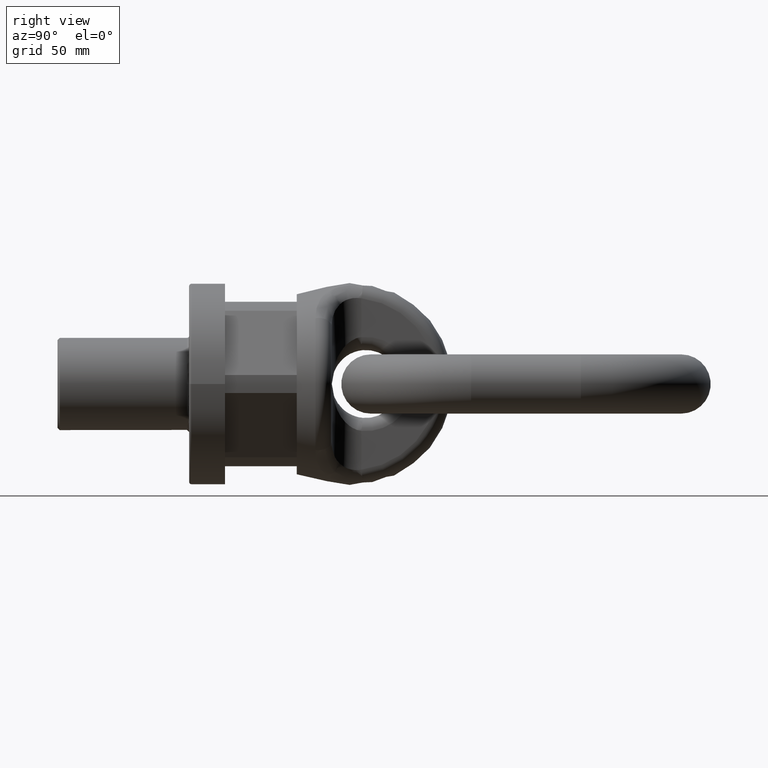
[diagram: clean part render]
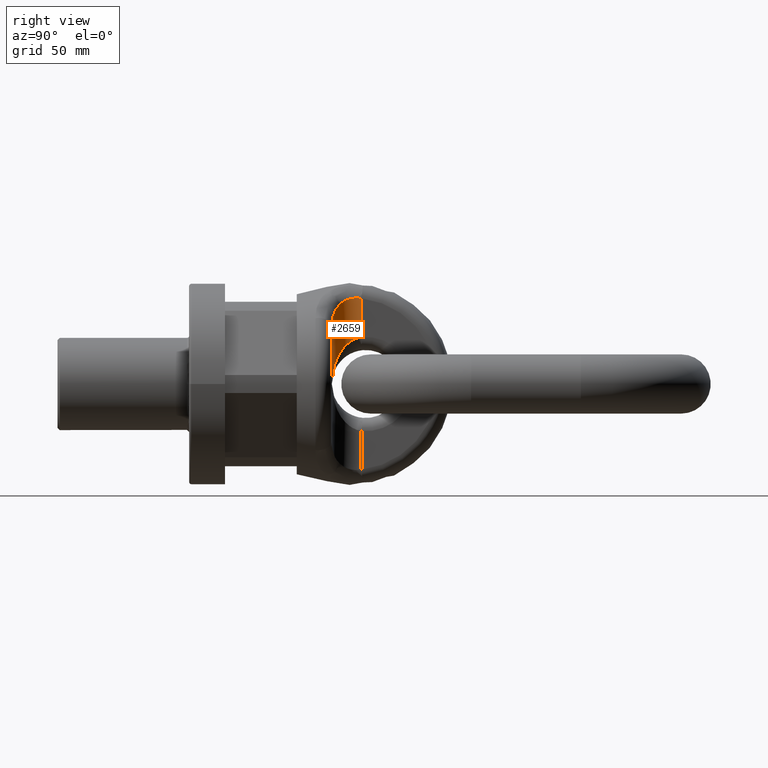
[diagram: same view with one face highlighted and labeled with its STEP entity id]
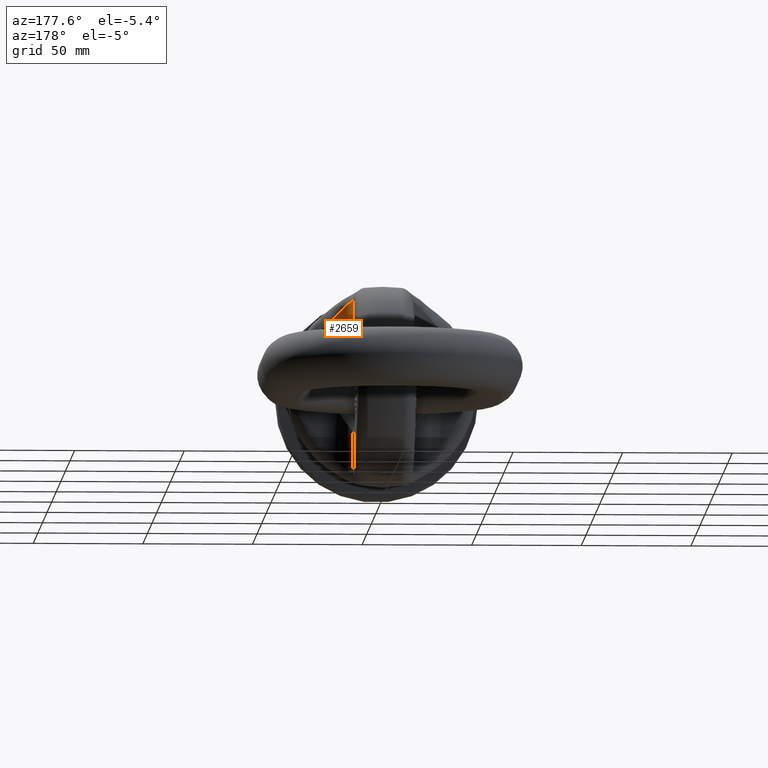
[diagram: same view with one face highlighted and labeled with its STEP entity id]
A machine part, right view. The second image highlights one B-rep face of the part: STEP entity #2659.
A second angle (auxiliary view) of the same face is appended — the face is thin or edge-on in the first view.
In plain terms, the highlighted cylindrical surface (edge-blend (fillet) strip) has radius 13.5 mm, axis along (0, 0, -1).
Its self-contained STEP definition (entity closure, byte-faithful):
#343=B_SPLINE_CURVE_WITH_KNOTS('',3,(#6964,#6965,#6966,#6967,#6968,#6969,
#6970,#6971),.UNSPECIFIED.,.F.,.F.,(4,2,2,4),(0.,0.5,0.75,1.),
 .UNSPECIFIED.);
#344=B_SPLINE_CURVE_WITH_KNOTS('',3,(#6972,#6973,#6974,#6975,#6976,#6977),
 .UNSPECIFIED.,.F.,.F.,(4,2,4),(0.,0.5,1.),.UNSPECIFIED.);
#345=B_SPLINE_CURVE_WITH_KNOTS('',3,(#6979,#6980,#6981,#6982,#6983,#6984),
 .UNSPECIFIED.,.F.,.F.,(4,2,4),(0.,0.5,1.),.UNSPECIFIED.);
#1812=FACE_OUTER_BOUND('',#3094,.T.);
#2020=CYLINDRICAL_SURFACE('',#5642,13.5);
#2063=LINE('',#6780,#2319);
#2091=LINE('',#6961,#2347);
#2319=VECTOR('',#5919,1.);
#2347=VECTOR('',#5953,1.);
#2659=ADVANCED_FACE('',(#1812),#2020,.F.);
#3094=EDGE_LOOP('',(#3503,#3504,#3505,#3506,#3507));
#3503=ORIENTED_EDGE('',*,*,#5050,.F.);
#3504=ORIENTED_EDGE('',*,*,#5051,.T.);
#3505=ORIENTED_EDGE('',*,*,#5000,.F.);
#3506=ORIENTED_EDGE('',*,*,#5052,.T.);
#3507=ORIENTED_EDGE('',*,*,#5053,.T.);
#4590=VERTEX_POINT('',#6781);
#4591=VERTEX_POINT('',#6782);
#4640=VERTEX_POINT('',#6962);
#4641=VERTEX_POINT('',#6963);
#4642=VERTEX_POINT('',#6978);
#5000=EDGE_CURVE('',#4590,#4591,#2063,.T.);
#5050=EDGE_CURVE('',#4640,#4641,#2091,.T.);
#5051=EDGE_CURVE('',#4640,#4591,#343,.T.);
#5052=EDGE_CURVE('',#4590,#4642,#344,.T.);
#5053=EDGE_CURVE('',#4642,#4641,#345,.T.);
#5642=AXIS2_PLACEMENT_3D('',#6985,#5954,#5955);
#5919=DIRECTION('',(0.,0.,-1.));
#5953=DIRECTION('',(0.,0.,1.));
#5954=DIRECTION('',(0.,0.,-1.));
#5955=DIRECTION('',(-1.,0.,0.));
#6780=CARTESIAN_POINT('',(13.5,78.5,-43.0435825646519));
#6781=CARTESIAN_POINT('',(13.5,78.5,39.0320381225475));
#6782=CARTESIAN_POINT('',(13.5,78.5,21.4067746286077));
#6961=CARTESIAN_POINT('',(27.,65.,43.0435825646519));
#6962=CARTESIAN_POINT('',(27.,65.,0.));
#6963=CARTESIAN_POINT('',(27.,65.,25.9805035838614));
#6964=CARTESIAN_POINT('',(27.,65.,-2.85611304025402E-15));
#6965=CARTESIAN_POINT('',(24.1730954971867,65.,4.287596541272));
#6966=CARTESIAN_POINT('',(21.31741609164,65.825572560723,8.61195186972769));
#6967=CARTESIAN_POINT('',(17.4413749037773,68.8276991378924,14.6031351705093));
#6968=CARTESIAN_POINT('',(16.2246410338136,70.1200839458872,16.5050711504721));
#6969=CARTESIAN_POINT('',(14.2435577247874,73.6415502057427,19.7491593798936));
#6970=CARTESIAN_POINT('',(13.5,75.9084166045796,21.0570350435674));
#6971=CARTESIAN_POINT('',(13.5,78.5,21.4067746286077));
#6972=CARTESIAN_POINT('',(13.5,78.5,39.0320381225475));
#6973=CARTESIAN_POINT('',(13.5,76.5499840439854,39.3567740144909));
#6974=CARTESIAN_POINT('',(13.9462617391829,74.5798490508736,39.2416131722303));
#6975=CARTESIAN_POINT('',(15.5092497016231,71.1699028910792,38.2402986830117));
#6976=CARTESIAN_POINT('',(16.6068690240233,69.7298015589432,37.3679576140051));
#6977=CARTESIAN_POINT('',(17.8064581196519,68.6142128439721,36.278251056184));
#6978=CARTESIAN_POINT('',(17.8064581196519,68.6142128439721,36.278251056184));
#6979=CARTESIAN_POINT('',(17.8064581196519,68.6142128439721,36.278251056184));
#6980=CARTESIAN_POINT('',(19.2957013171124,67.2292528514309,34.9254227549124));
#6981=CARTESIAN_POINT('',(20.9539518270051,66.3120571266292,33.3860654048055));
#6982=CARTESIAN_POINT('',(24.1418137043601,65.1984429071577,29.9095826751151));
#6983=CARTESIAN_POINT('',(25.6507288503275,65.,28.0059290983197));
#6984=CARTESIAN_POINT('',(27.,65.,25.9805035838614));
#6985=CARTESIAN_POINT('',(27.,78.5,50.6));